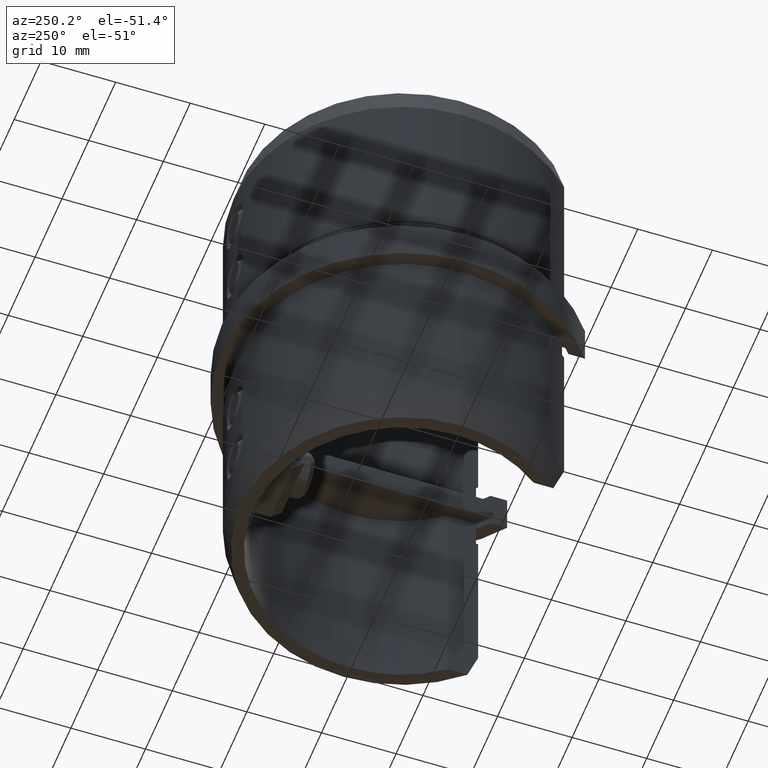
[diagram: clean part render]
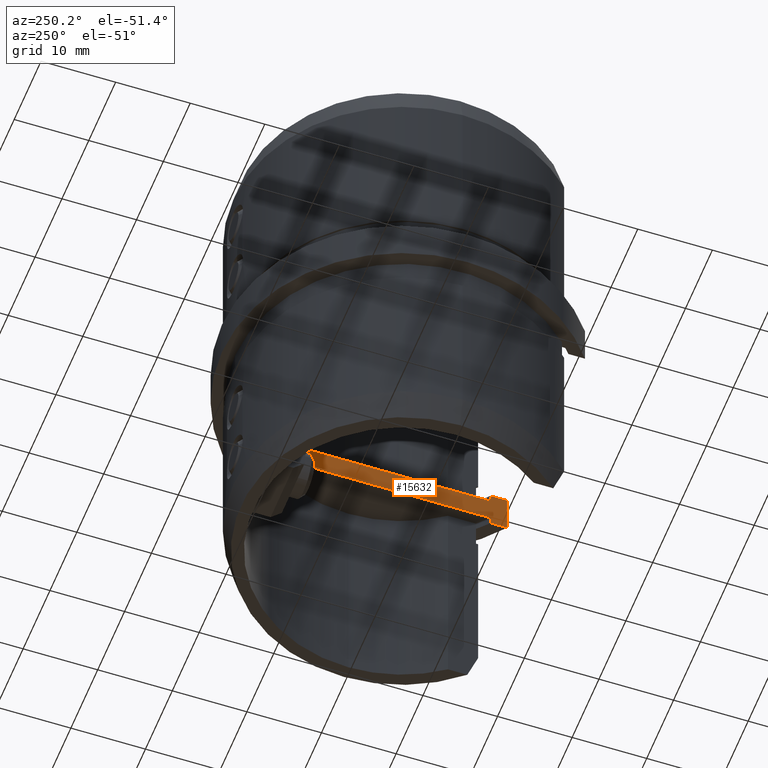
[diagram: same view with one face highlighted and labeled with its STEP entity id]
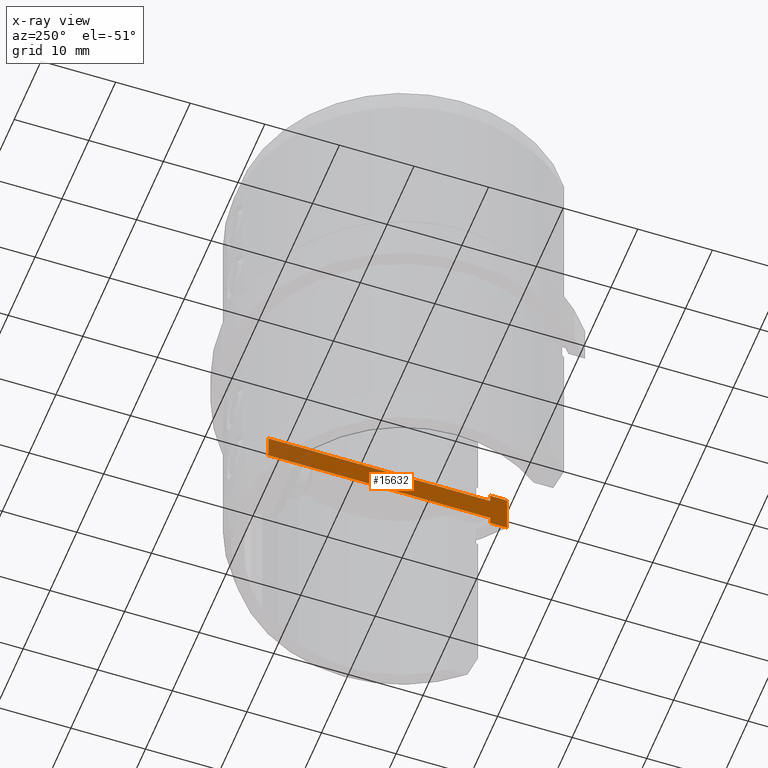
[diagram: x-ray of the same camera — body ghosted, the highlighted face saturated]
A machine part, auxiliary view. The second image highlights one B-rep face of the part: STEP entity #15632.
The next image is the same camera in x-ray: the body ghosted, the highlighted face saturated — about 18% of this face is hidden behind the body in this view.
In plain terms, the highlighted planar face has unit normal (1, 0, 0).
Its self-contained STEP definition (entity closure, byte-faithful):
#318 = FACE_OUTER_BOUND ( 'NONE', #7152, .T. ) ;
#330 = ORIENTED_EDGE ( 'NONE', *, *, #17364, .F. ) ;
#1247 = CARTESIAN_POINT ( 'NONE',  ( 14.50000000000000500, -19.31249595469212500, -2.750000000000000000 ) ) ;
#1439 = EDGE_CURVE ( 'NONE', #10908, #15094, #8561, .T. ) ;
#1836 = VECTOR ( 'NONE', #9650, 1000.000000000000000 ) ;
#2020 = ORIENTED_EDGE ( 'NONE', *, *, #5699, .F. ) ;
#2515 = EDGE_CURVE ( 'NONE', #10875, #16413, #6500, .T. ) ;
#2727 = VECTOR ( 'NONE', #17435, 1000.000000000000000 ) ;
#3186 = DIRECTION ( 'NONE',  ( 2.101753996015658200E-016, -1.000000000000000000, 0.0000000000000000000 ) ) ;
#3438 = CARTESIAN_POINT ( 'NONE',  ( 14.49999999999999800, -17.07366393015864100, -2.750000000000000000 ) ) ;
#3858 = CARTESIAN_POINT ( 'NONE',  ( 14.50000000000000500, -19.31249595469212500, 2.750000000000000000 ) ) ;
#3944 = VECTOR ( 'NONE', #3186, 1000.000000000000000 ) ;
#4038 = ORIENTED_EDGE ( 'NONE', *, *, #6781, .T. ) ;
#4182 = VECTOR ( 'NONE', #17497, 1000.000000000000000 ) ;
#4294 = CARTESIAN_POINT ( 'NONE',  ( 14.49999999999999800, -17.07366393015864100, -31.25478005050904400 ) ) ;
#4712 = DIRECTION ( 'NONE',  ( 2.101753996015658200E-016, -1.000000000000000000, 0.0000000000000000000 ) ) ;
#4733 = ORIENTED_EDGE ( 'NONE', *, *, #6560, .T. ) ;
#5156 = VERTEX_POINT ( 'NONE', #12770 ) ;
#5699 = EDGE_CURVE ( 'NONE', #17731, #17268, #17836, .T. ) ;
#6439 = VECTOR ( 'NONE', #8009, 1000.000000000000000 ) ;
#6500 = LINE ( 'NONE', #4294, #2727 ) ;
#6560 = EDGE_CURVE ( 'NONE', #10875, #5156, #7187, .T. ) ;
#6781 = EDGE_CURVE ( 'NONE', #10908, #12745, #13270, .T. ) ;
#6825 = DIRECTION ( 'NONE',  ( 0.0000000000000000000, 1.000000000000000000, 0.0000000000000000000 ) ) ;
#7152 = EDGE_LOOP ( 'NONE', ( #4733, #10029, #16281, #4038, #10994, #2020, #330, #14646 ) ) ;
#7187 = LINE ( 'NONE', #13751, #19836 ) ;
#7843 = EDGE_CURVE ( 'NONE', #12745, #17268, #20113, .T. ) ;
#8009 = DIRECTION ( 'NONE',  ( -0.0000000000000000000, -0.0000000000000000000, -1.000000000000000000 ) ) ;
#8249 = CARTESIAN_POINT ( 'NONE',  ( 14.49999999999999800, -17.07366393015864100, 1.700000000000000200 ) ) ;
#8561 = LINE ( 'NONE', #15039, #12593 ) ;
#9306 = AXIS2_PLACEMENT_3D ( 'NONE', #14427, #9477, #19221 ) ;
#9477 = DIRECTION ( 'NONE',  ( 1.000000000000000000, 2.101753996015658400E-016, -0.0000000000000000000 ) ) ;
#9551 = CARTESIAN_POINT ( 'NONE',  ( 14.50000000000000500, -19.31249595469212500, 2.750000000000000000 ) ) ;
#9650 = DIRECTION ( 'NONE',  ( 0.0000000000000000000, 0.0000000000000000000, -1.000000000000000000 ) ) ;
#9965 = CARTESIAN_POINT ( 'NONE',  ( 14.49999999999999800, 13.70228083203668800, -2.750000000000000000 ) ) ;
#10029 = ORIENTED_EDGE ( 'NONE', *, *, #10807, .T. ) ;
#10287 = CARTESIAN_POINT ( 'NONE',  ( 14.49999999999999800, -17.07366393015864100, -1.700000000000000200 ) ) ;
#10659 = LINE ( 'NONE', #12890, #17261 ) ;
#10807 = EDGE_CURVE ( 'NONE', #5156, #15094, #14243, .T. ) ;
#10875 = VERTEX_POINT ( 'NONE', #8249 ) ;
#10908 = VERTEX_POINT ( 'NONE', #10287 ) ;
#10994 = ORIENTED_EDGE ( 'NONE', *, *, #7843, .T. ) ;
#11157 = PLANE ( 'NONE',  #9306 ) ;
#12593 = VECTOR ( 'NONE', #6825, 1000.000000000000000 ) ;
#12745 = VERTEX_POINT ( 'NONE', #3438 ) ;
#12770 = CARTESIAN_POINT ( 'NONE',  ( 14.49999999999999800, 12.70228083203669000, 1.700000000000000200 ) ) ;
#12890 = CARTESIAN_POINT ( 'NONE',  ( 14.49999999999999800, 13.70228083203668800, 2.750000000000000000 ) ) ;
#13270 = LINE ( 'NONE', #14173, #4182 ) ;
#13751 = CARTESIAN_POINT ( 'NONE',  ( 14.49999999999999800, 0.0000000000000000000, 1.700000000000000200 ) ) ;
#13882 = DIRECTION ( 'NONE',  ( 0.0000000000000000000, 1.000000000000000000, 0.0000000000000000000 ) ) ;
#14173 = CARTESIAN_POINT ( 'NONE',  ( 14.49999999999999800, -17.07366393015864100, 31.25478005050904400 ) ) ;
#14243 = LINE ( 'NONE', #19409, #1836 ) ;
#14320 = CARTESIAN_POINT ( 'NONE',  ( 14.49999999999999800, 12.70228083203669000, -1.700000000000000200 ) ) ;
#14427 = CARTESIAN_POINT ( 'NONE',  ( 14.49999999999999800, 13.70228083203668800, 2.750000000000000000 ) ) ;
#14646 = ORIENTED_EDGE ( 'NONE', *, *, #2515, .F. ) ;
#15039 = CARTESIAN_POINT ( 'NONE',  ( 14.49999999999999800, 0.0000000000000000000, -1.700000000000000200 ) ) ;
#15094 = VERTEX_POINT ( 'NONE', #14320 ) ;
#15632 = ADVANCED_FACE ( 'NONE', ( #318 ), #11157, .F. ) ;
#16281 = ORIENTED_EDGE ( 'NONE', *, *, #1439, .F. ) ;
#16413 = VERTEX_POINT ( 'NONE', #20504 ) ;
#17261 = VECTOR ( 'NONE', #4712, 1000.000000000000000 ) ;
#17268 = VERTEX_POINT ( 'NONE', #1247 ) ;
#17364 = EDGE_CURVE ( 'NONE', #16413, #17731, #10659, .T. ) ;
#17435 = DIRECTION ( 'NONE',  ( -0.0000000000000000000, -0.0000000000000000000, 1.000000000000000000 ) ) ;
#17497 = DIRECTION ( 'NONE',  ( 0.0000000000000000000, 0.0000000000000000000, -1.000000000000000000 ) ) ;
#17731 = VERTEX_POINT ( 'NONE', #3858 ) ;
#17836 = LINE ( 'NONE', #9551, #6439 ) ;
#19221 = DIRECTION ( 'NONE',  ( -2.101753996015658400E-016, 1.000000000000000000, 0.0000000000000000000 ) ) ;
#19409 = CARTESIAN_POINT ( 'NONE',  ( 14.49999999999999800, 12.70228083203669000, 0.0000000000000000000 ) ) ;
#19836 = VECTOR ( 'NONE', #13882, 1000.000000000000000 ) ;
#20113 = LINE ( 'NONE', #9965, #3944 ) ;
#20504 = CARTESIAN_POINT ( 'NONE',  ( 14.49999999999999800, -17.07366393015864100, 2.750000000000000000 ) ) ;